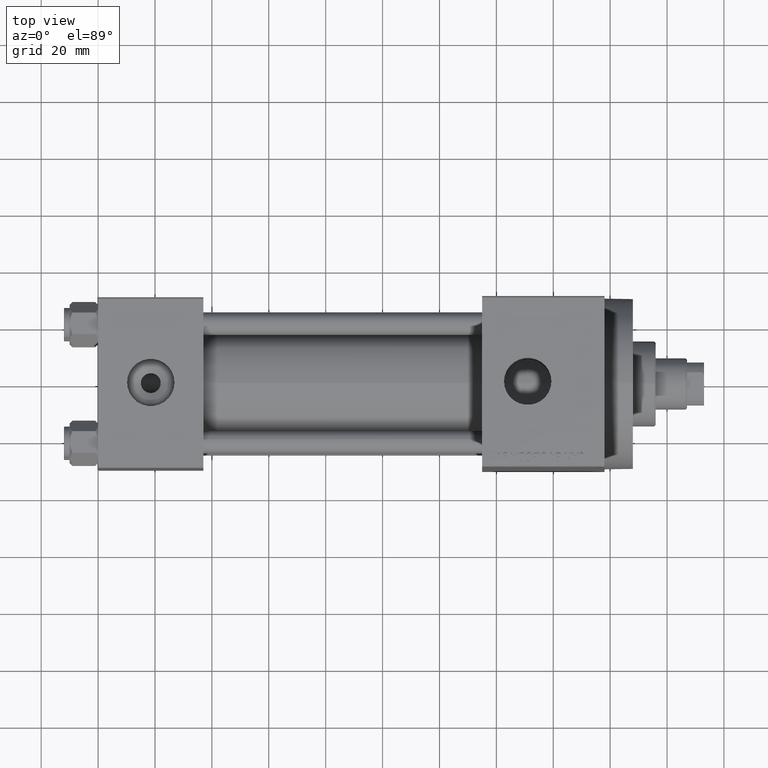
[diagram: clean part render]
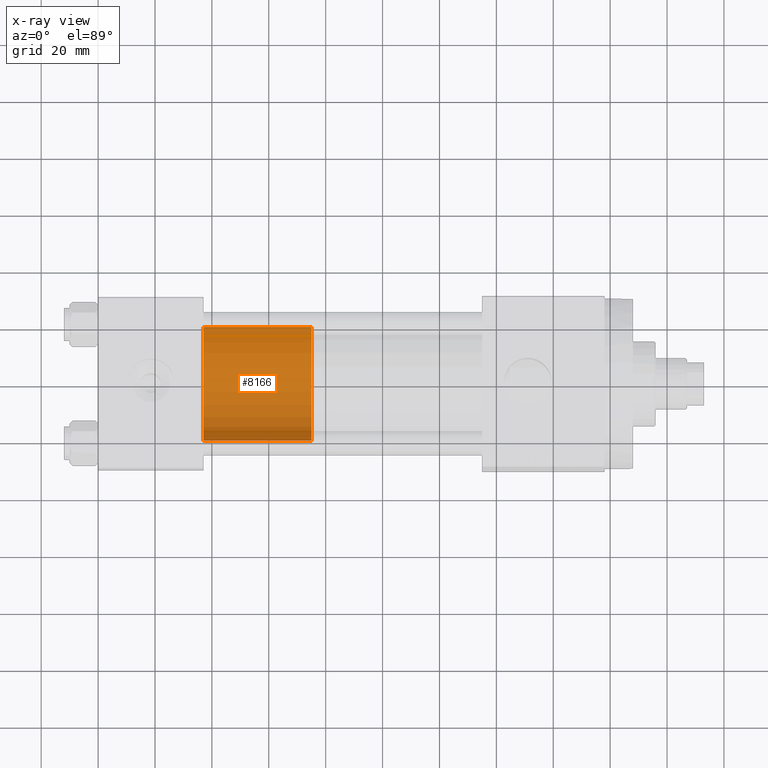
[diagram: x-ray — body ghosted, one internal face saturated and labeled with its STEP entity id]
A machine part, top view, then the same camera in x-ray: the body is ghosted and one INTERNAL B-rep face — a face not visible from any outside direction — is saturated and labeled: STEP entity #8166.
In plain terms, the highlighted cylindrical surface (partial cylindrical patch) has radius 20 mm, axis along (-1, 0, 0).
Its self-contained STEP definition (entity closure, byte-faithful):
#355 = CARTESIAN_POINT ( 'NONE',  ( 0.000000000000000000, 0.000000000000000000, 0.000000000000000000 ) ) ;
#1458 = ORIENTED_EDGE ( 'NONE', *, *, #46877, .T. ) ;
#1860 = VERTEX_POINT ( 'NONE', #31186 ) ;
#2892 = ORIENTED_EDGE ( 'NONE', *, *, #22852, .F. ) ;
#7660 = CIRCLE ( 'NONE', #12286, 20.00000000000000000 ) ;
#8028 = ORIENTED_EDGE ( 'NONE', *, *, #46103, .F. ) ;
#8166 = ADVANCED_FACE ( 'NONE', ( #32751 ), #17954, .T. ) ;
#9607 = DIRECTION ( 'NONE',  ( 1.000000000000000000, 0.000000000000000000, 0.000000000000000000 ) ) ;
#10446 = LINE ( 'NONE', #32167, #45915 ) ;
#12286 = AXIS2_PLACEMENT_3D ( 'NONE', #355, #44285, #33558 ) ;
#13170 = DIRECTION ( 'NONE',  ( -0.000000000000000000, -0.000000000000000000, -1.000000000000000000 ) ) ;
#13403 = LINE ( 'NONE', #38218, #36704 ) ;
#13440 = CARTESIAN_POINT ( 'NONE',  ( 0.000000000000000000, 0.000000000000000000, 38.00000000000000000 ) ) ;
#16229 = CARTESIAN_POINT ( 'NONE',  ( 20.00000000000000000, 2.449293598294706513E-15, 0.000000000000000000 ) ) ;
#17954 = CYLINDRICAL_SURFACE ( 'NONE', #34084, 20.00000000000000000 ) ;
#20945 = EDGE_CURVE ( 'NONE', #43996, #35208, #7660, .T. ) ;
#21789 = ORIENTED_EDGE ( 'NONE', *, *, #20945, .T. ) ;
#22852 = EDGE_CURVE ( 'NONE', #1860, #35208, #13403, .T. ) ;
#22936 = DIRECTION ( 'NONE',  ( -1.000000000000000000, 0.000000000000000000, 0.000000000000000000 ) ) ;
#23060 = CIRCLE ( 'NONE', #26130, 20.00000000000000000 ) ;
#24024 = EDGE_LOOP ( 'NONE', ( #8028, #1458, #21789, #2892 ) ) ;
#24712 = VERTEX_POINT ( 'NONE', #31363 ) ;
#26130 = AXIS2_PLACEMENT_3D ( 'NONE', #13440, #27761, #9607 ) ;
#27761 = DIRECTION ( 'NONE',  ( 0.000000000000000000, 0.000000000000000000, 1.000000000000000000 ) ) ;
#31186 = CARTESIAN_POINT ( 'NONE',  ( -20.00000000000000000, 0.000000000000000000, 38.00000000000000000 ) ) ;
#31363 = CARTESIAN_POINT ( 'NONE',  ( 20.00000000000000000, 2.449293598294706513E-15, 38.00000000000000000 ) ) ;
#32167 = CARTESIAN_POINT ( 'NONE',  ( 20.00000000000000000, 2.449293598294706513E-15, 38.00000000000000000 ) ) ;
#32751 = FACE_OUTER_BOUND ( 'NONE', #24024, .T. ) ;
#32871 = DIRECTION ( 'NONE',  ( -0.000000000000000000, -0.000000000000000000, -1.000000000000000000 ) ) ;
#33558 = DIRECTION ( 'NONE',  ( 1.000000000000000000, 0.000000000000000000, 0.000000000000000000 ) ) ;
#34084 = AXIS2_PLACEMENT_3D ( 'NONE', #47062, #37482, #22936 ) ;
#34238 = CARTESIAN_POINT ( 'NONE',  ( -20.00000000000000000, 0.000000000000000000, 0.000000000000000000 ) ) ;
#35208 = VERTEX_POINT ( 'NONE', #34238 ) ;
#36704 = VECTOR ( 'NONE', #13170, 1000.000000000000000 ) ;
#37482 = DIRECTION ( 'NONE',  ( -0.000000000000000000, -0.000000000000000000, -1.000000000000000000 ) ) ;
#38218 = CARTESIAN_POINT ( 'NONE',  ( -20.00000000000000000, 0.000000000000000000, 38.00000000000000000 ) ) ;
#43996 = VERTEX_POINT ( 'NONE', #16229 ) ;
#44285 = DIRECTION ( 'NONE',  ( 0.000000000000000000, 0.000000000000000000, 1.000000000000000000 ) ) ;
#45915 = VECTOR ( 'NONE', #32871, 1000.000000000000000 ) ;
#46103 = EDGE_CURVE ( 'NONE', #24712, #1860, #23060, .T. ) ;
#46877 = EDGE_CURVE ( 'NONE', #24712, #43996, #10446, .T. ) ;
#47062 = CARTESIAN_POINT ( 'NONE',  ( 0.000000000000000000, 0.000000000000000000, 38.00000000000000000 ) ) ;